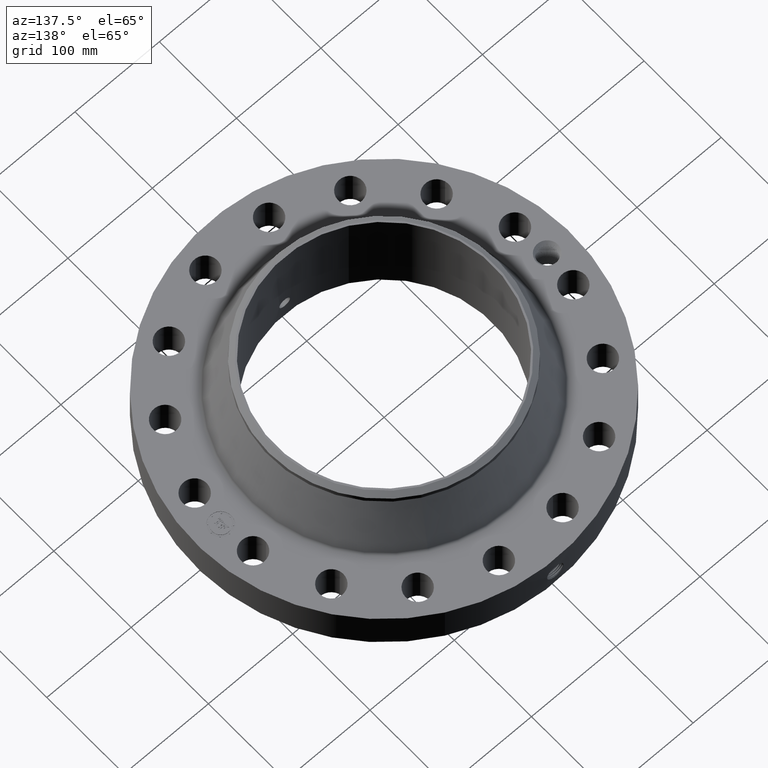
[diagram: clean part render]
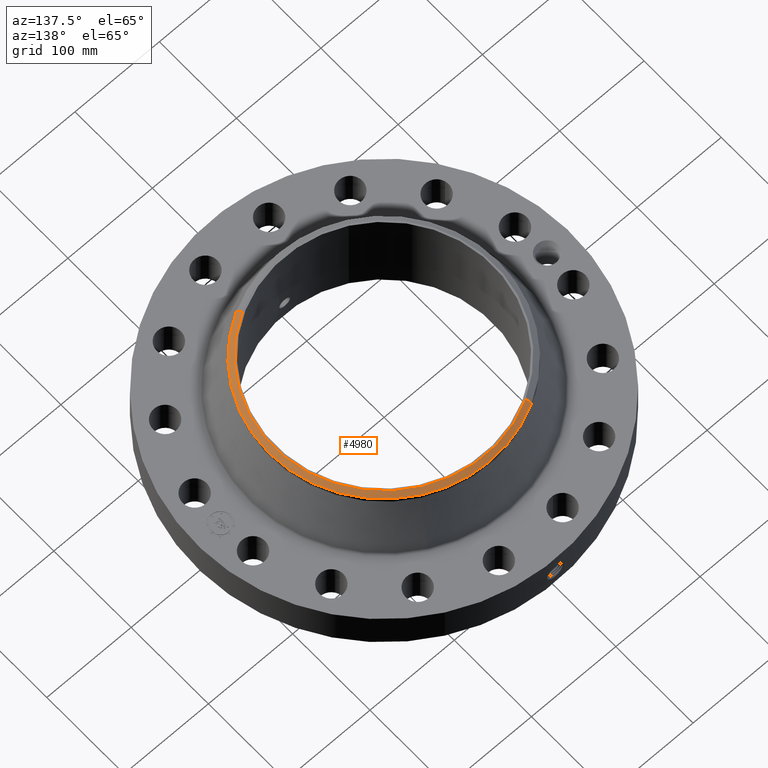
[diagram: same view with one face highlighted and labeled with its STEP entity id]
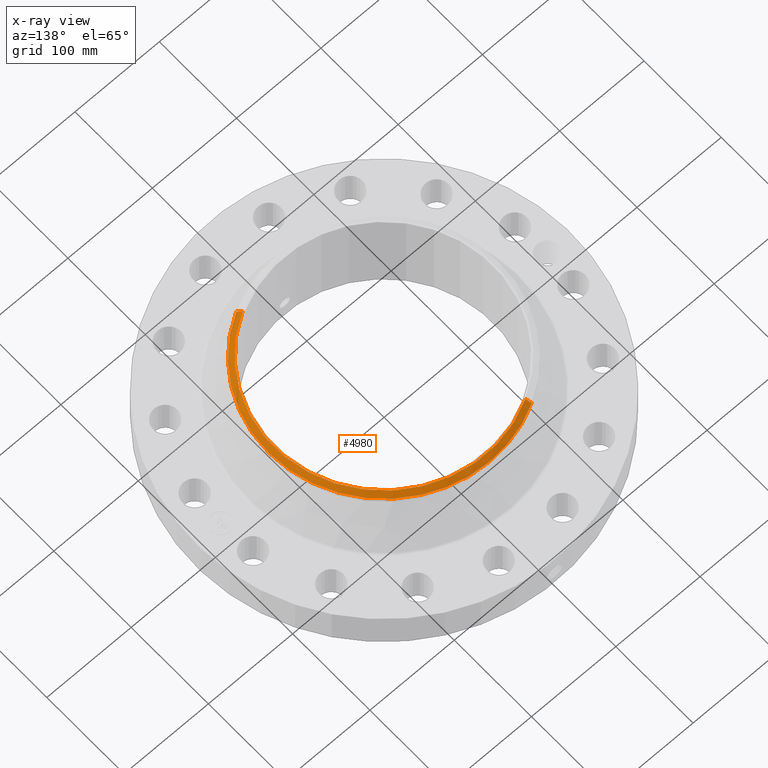
[diagram: x-ray of the same camera — body ghosted, the highlighted face saturated]
A machine part, auxiliary view. The second image highlights one B-rep face of the part: STEP entity #4980.
The next image is the same camera in x-ray: the body ghosted, the highlighted face saturated — about 0% of this face is hidden behind the body in this view.
In plain terms, the highlighted conical surface has half-angle 52.5 deg.
Its self-contained STEP definition (entity closure, byte-faithful):
#3807=AXIS2_PLACEMENT_3D('Circle Axis2P3D',#3805,#3806,$) ;
#3834=AXIS2_PLACEMENT_3D('Circle Axis2P3D',#3832,#3833,$) ;
#4608=AXIS2_PLACEMENT_3D('Circle Axis2P3D',#4606,#4607,$) ;
#4961=AXIS2_PLACEMENT_3D('Cone Axis2P3D',#4958,#4959,#4960) ;
#3802=CARTESIAN_POINT('Vertex',(2.57691227001,4.71700627018,4.50485006258)) ;
#3805=CARTESIAN_POINT('Axis2P3D Location',(0.,0.,4.50485006258)) ;
#3809=CARTESIAN_POINT('Vertex',(2.57691227001,-4.71700627018,4.50485006258)) ;
#3829=CARTESIAN_POINT('Vertex',(-2.57691227001,4.71700627018,4.50485006258)) ;
#3832=CARTESIAN_POINT('Axis2P3D Location',(0.,0.,4.50485006258)) ;
#4606=CARTESIAN_POINT('Axis2P3D Location',(0.,0.,4.68000000002)) ;
#4610=CARTESIAN_POINT('Vertex',(2.46747867207,-4.5166894128,4.68000000002)) ;
#4612=CARTESIAN_POINT('Vertex',(-2.46747867207,4.5166894128,4.68000000002)) ;
#4958=CARTESIAN_POINT('Axis2P3D Location',(0.,0.,4.68000000002)) ;
#4963=CARTESIAN_POINT('Line Origine',(-2.52219547104,4.61684784149,4.5924250313)) ;
#4968=CARTESIAN_POINT('Line Origine',(2.52219547104,-4.61684784149,4.5924250313)) ;
#3806=DIRECTION('Axis2P3D Direction',(0.,0.,-0.0393700787402)) ;
#3833=DIRECTION('Axis2P3D Direction',(0.,0.,-0.0393700787402)) ;
#4607=DIRECTION('Axis2P3D Direction',(0.,0.,-0.0393700787402)) ;
#4959=DIRECTION('Axis2P3D Direction',(-0.,-0.,-0.0393700787402)) ;
#4960=DIRECTION('Axis2P3D XDirection',(0.0188750212049,-0.0345504945626,0.)) ;
#4964=DIRECTION('Vector Direction',(-0.014974561121,0.02741075027,-0.023966985394)) ;
#4969=DIRECTION('Vector Direction',(0.014974561121,-0.02741075027,-0.023966985394)) ;
#4965=VECTOR('Line Direction',#4964,0.0393700787402) ;
#4970=VECTOR('Line Direction',#4969,0.0393700787402) ;
#4974=ORIENTED_EDGE('',*,*,#4967,.F.) ;
#4975=ORIENTED_EDGE('',*,*,#4614,.F.) ;
#4976=ORIENTED_EDGE('',*,*,#4972,.T.) ;
#4977=ORIENTED_EDGE('',*,*,#3811,.T.) ;
#4978=ORIENTED_EDGE('',*,*,#3836,.F.) ;
#4980=ADVANCED_FACE('PartBody',(#4979),#4962,.T.) ;
#3808=CIRCLE('generated circle',#3807,5.37500000002) ;
#3835=CIRCLE('generated circle',#3834,5.37500000002) ;
#4609=CIRCLE('generated circle',#4608,5.1467401575) ;
#4962=CONICAL_SURFACE('Cone',#4961,5.1467401575,0.916297857297) ;
#3811=EDGE_CURVE('',#3810,#3803,#3808,.F.) ;
#3836=EDGE_CURVE('',#3830,#3803,#3835,.T.) ;
#4614=EDGE_CURVE('',#4611,#4613,#4609,.F.) ;
#4967=EDGE_CURVE('',#4613,#3830,#4966,.T.) ;
#4972=EDGE_CURVE('',#4611,#3810,#4971,.T.) ;
#4973=EDGE_LOOP('',(#4974,#4975,#4976,#4977,#4978)) ;
#4979=FACE_OUTER_BOUND('',#4973,.T.) ;
#4966=LINE('Line',#4963,#4965) ;
#4971=LINE('Line',#4968,#4970) ;
#3803=VERTEX_POINT('',#3802) ;
#3810=VERTEX_POINT('',#3809) ;
#3830=VERTEX_POINT('',#3829) ;
#4611=VERTEX_POINT('',#4610) ;
#4613=VERTEX_POINT('',#4612) ;